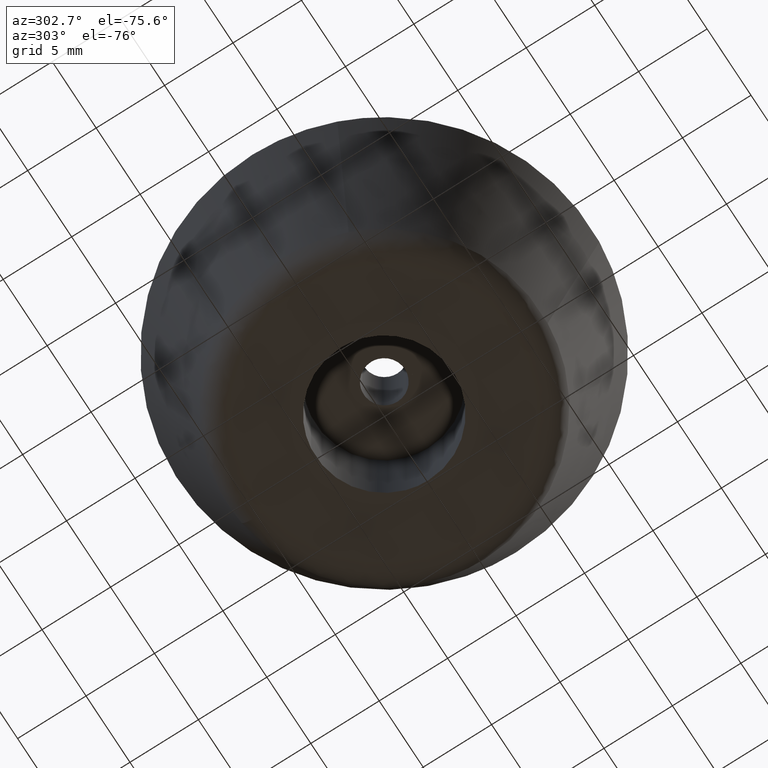
[diagram: clean part render]
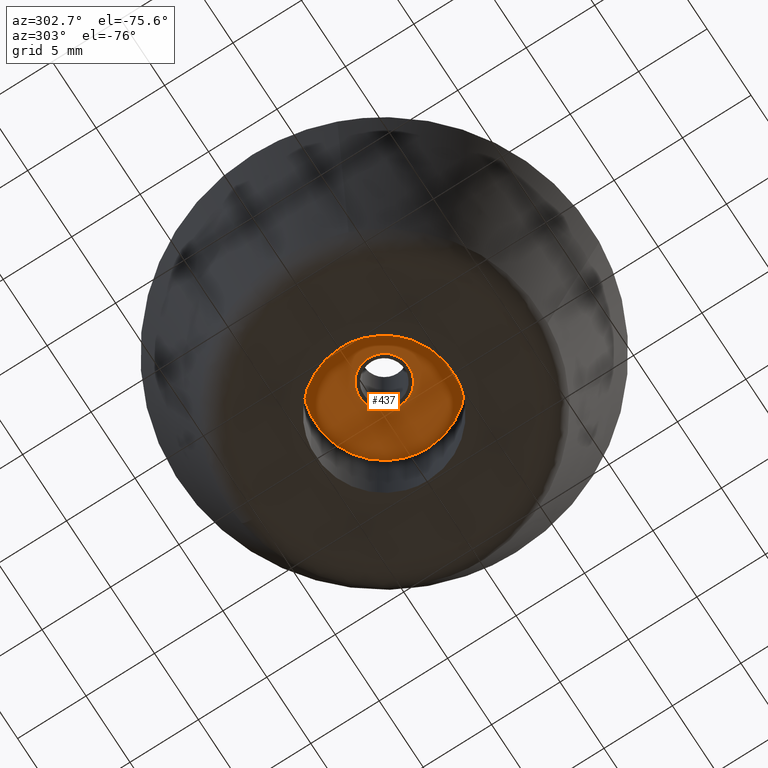
[diagram: same view with one face highlighted and labeled with its STEP entity id]
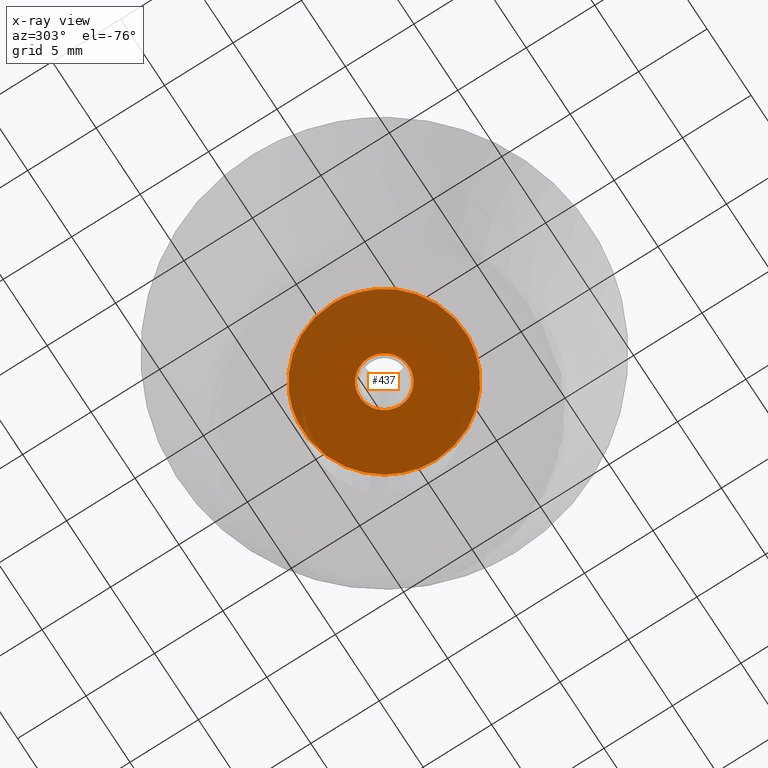
[diagram: x-ray of the same camera — body ghosted, the highlighted face saturated]
A machine part, auxiliary view. The second image highlights one B-rep face of the part: STEP entity #437.
The next image is the same camera in x-ray: the body ghosted, the highlighted face saturated — about 41% of this face is hidden behind the body in this view.
In plain terms, the highlighted face is a freeform B-spline surface patch.
Its self-contained STEP definition (entity closure, byte-faithful):
#66=CARTESIAN_POINT('',(-0.212461622440302,1.787417147447689,7.999999999999900));
#67=VERTEX_POINT('',#66);
#68=CARTESIAN_POINT('',(1.800000000000000,0.0,7.999999999999900));
#69=VERTEX_POINT('',#68);
#70=CARTESIAN_POINT('',(-0.212461622440302,1.787417147447688,7.999999999999900));
#71=CARTESIAN_POINT('',(-0.106603415432190,1.800000000000000,7.999999999999899));
#72=CARTESIAN_POINT('',(0.0,1.800000000000000,7.999999999999900));
#73=CARTESIAN_POINT('',(1.800000000000001,1.800000000000001,7.999999999999900));
#74=CARTESIAN_POINT('',(1.800000000000000,0.0,7.999999999999900));
#82=(BOUNDED_CURVE()B_SPLINE_CURVE(2,(#70,#71,#72,#73,#74),.UNSPECIFIED.,.F.,.U.)B_SPLINE_CURVE_WITH_KNOTS((3,2,3),(0.229562473504650,0.250000000000000,0.500000000000000),.UNSPECIFIED.)CURVE()GEOMETRIC_REPRESENTATION_ITEM()RATIONAL_B_SPLINE_CURVE((0.956026754166337,0.976055948320767,1.0,0.707106781186547,1.0))REPRESENTATION_ITEM(''));
#83=EDGE_CURVE('',#67,#69,#82,.T.);
#85=CARTESIAN_POINT('',(0.109887371177959,-1.796642637158430,7.999999999999899));
#86=VERTEX_POINT('',#85);
#87=CARTESIAN_POINT('',(1.800000000000000,0.0,7.999999999999900));
#88=CARTESIAN_POINT('',(1.800000000000000,-1.693270920401510,7.999999999999899));
#89=CARTESIAN_POINT('',(0.109887371177959,-1.796642637158429,7.999999999999900));
#97=(BOUNDED_CURVE()B_SPLINE_CURVE(2,(#87,#88,#89),.UNSPECIFIED.,.F.,.U.)B_SPLINE_CURVE_WITH_KNOTS((3,3),(0.500000000000000,0.739332962239045),.UNSPECIFIED.)CURVE()GEOMETRIC_REPRESENTATION_ITEM()RATIONAL_B_SPLINE_CURVE((1.0,0.719603993286591,0.976072041666937))REPRESENTATION_ITEM(''));
#98=EDGE_CURVE('',#69,#86,#97,.T.);
#165=CARTESIAN_POINT('',(-1.800000000000000,0.0,7.999999999999900));
#166=VERTEX_POINT('',#165);
#167=CARTESIAN_POINT('',(-1.800000000000000,0.0,7.999999999999900));
#168=CARTESIAN_POINT('',(-1.800000000000001,1.598714146607731,7.999999999999901));
#169=CARTESIAN_POINT('',(-0.212461622440302,1.787417147447688,7.999999999999900));
#177=(BOUNDED_CURVE()B_SPLINE_CURVE(2,(#167,#168,#169),.UNSPECIFIED.,.F.,.U.)B_SPLINE_CURVE_WITH_KNOTS((3,3),(0.0,0.229562473504650),.UNSPECIFIED.)CURVE()GEOMETRIC_REPRESENTATION_ITEM()RATIONAL_B_SPLINE_CURVE((1.0,0.731050832865780,0.956026754166337))REPRESENTATION_ITEM(''));
#178=EDGE_CURVE('',#166,#67,#177,.T.);
#212=CARTESIAN_POINT('',(0.109887371177959,-1.796642637158430,7.999999999999899));
#213=CARTESIAN_POINT('',(0.054994973952719,-1.800000000000000,7.999999999999901));
#214=CARTESIAN_POINT('',(0.0,-1.800000000000000,7.999999999999900));
#215=CARTESIAN_POINT('',(-1.800000000000001,-1.800000000000001,7.999999999999900));
#216=CARTESIAN_POINT('',(-1.800000000000000,0.0,7.999999999999900));
#224=(BOUNDED_CURVE()B_SPLINE_CURVE(2,(#212,#213,#214,#215,#216),.UNSPECIFIED.,.F.,.U.)B_SPLINE_CURVE_WITH_KNOTS((3,2,3),(0.739332962239046,0.750000000000000,1.0),.UNSPECIFIED.)CURVE()GEOMETRIC_REPRESENTATION_ITEM()RATIONAL_B_SPLINE_CURVE((0.976072041666938,0.987502787899958,1.0,0.707106781186547,1.0))REPRESENTATION_ITEM(''));
#225=EDGE_CURVE('',#86,#166,#224,.T.);
#252=CARTESIAN_POINT('',(-0.696391746445862,5.858757422472428,8.000000000000110));
#253=VERTEX_POINT('',#252);
#254=CARTESIAN_POINT('',(5.900000000000000,0.0,7.999999999999900));
#255=VERTEX_POINT('',#254);
#256=CARTESIAN_POINT('',(-0.696391746445862,5.858757422472428,8.000000000000110));
#257=CARTESIAN_POINT('',(-0.349417132815537,5.900000000000000,7.999999999999899));
#258=CARTESIAN_POINT('',(0.0,5.900000000000000,7.999999999999900));
#259=CARTESIAN_POINT('',(5.900000000000000,5.900000000000000,7.999999999999901));
#260=CARTESIAN_POINT('',(5.900000000000000,0.0,7.999999999999900));
#268=(BOUNDED_CURVE()B_SPLINE_CURVE(2,(#256,#257,#258,#259,#260),.UNSPECIFIED.,.F.,.U.)B_SPLINE_CURVE_WITH_KNOTS((3,2,3),(0.229562768844599,0.250000000000000,0.500000000000000),.UNSPECIFIED.)CURVE()GEOMETRIC_REPRESENTATION_ITEM()RATIONAL_B_SPLINE_CURVE((0.956027333045540,0.976056294333040,1.0,0.707106781186548,1.0))REPRESENTATION_ITEM(''));
#269=EDGE_CURVE('',#253,#255,#268,.T.);
#310=CARTESIAN_POINT('',(0.360185819184552,-5.888995345189027,7.999999999999903));
#311=VERTEX_POINT('',#310);
#317=CARTESIAN_POINT('',(5.900000000000000,0.0,7.999999999999900));
#318=CARTESIAN_POINT('',(5.900000000000000,-5.550166859963921,7.999999999999899));
#319=CARTESIAN_POINT('',(0.360185819184552,-5.888995345189027,7.999999999999903));
#327=(BOUNDED_CURVE()B_SPLINE_CURVE(2,(#317,#318,#319),.UNSPECIFIED.,.F.,.U.)B_SPLINE_CURVE_WITH_KNOTS((3,3),(0.500000000000000,0.739332995296389),.UNSPECIFIED.)CURVE()GEOMETRIC_REPRESENTATION_ITEM()RATIONAL_B_SPLINE_CURVE((1.0,0.719603954557504,0.976072112515127))REPRESENTATION_ITEM(''));
#328=EDGE_CURVE('',#255,#311,#327,.T.);
#355=CARTESIAN_POINT('',(-5.900000000000000,0.0,7.999999999999900));
#356=VERTEX_POINT('',#355);
#357=CARTESIAN_POINT('',(-5.900000000000000,0.0,7.999999999999900));
#358=CARTESIAN_POINT('',(-5.900000000000000,5.240238924751410,7.999999999999901));
#359=CARTESIAN_POINT('',(-0.696391746445862,5.858757422472428,8.000000000000110));
#367=(BOUNDED_CURVE()B_SPLINE_CURVE(2,(#357,#358,#359),.UNSPECIFIED.,.F.,.U.)B_SPLINE_CURVE_WITH_KNOTS((3,3),(0.0,0.229562768844599),.UNSPECIFIED.)CURVE()GEOMETRIC_REPRESENTATION_ITEM()RATIONAL_B_SPLINE_CURVE((1.0,0.731050486853508,0.956027333045540))REPRESENTATION_ITEM(''));
#368=EDGE_CURVE('',#356,#253,#367,.T.);
#370=CARTESIAN_POINT('',(0.360185819184552,-5.888995345189027,7.999999999999903));
#371=CARTESIAN_POINT('',(0.180260737808975,-5.900000000000000,7.999999999999901));
#372=CARTESIAN_POINT('',(0.0,-5.900000000000000,7.999999999999900));
#373=CARTESIAN_POINT('',(-5.900000000000000,-5.900000000000000,7.999999999999901));
#374=CARTESIAN_POINT('',(-5.900000000000000,0.0,7.999999999999900));
#382=(BOUNDED_CURVE()B_SPLINE_CURVE(2,(#370,#371,#372,#373,#374),.UNSPECIFIED.,.F.,.U.)B_SPLINE_CURVE_WITH_KNOTS((3,2,3),(0.739332995296388,0.750000000000000,1.0),.UNSPECIFIED.)CURVE()GEOMETRIC_REPRESENTATION_ITEM()RATIONAL_B_SPLINE_CURVE((0.976072112515125,0.987502826629043,1.0,0.707106781186548,1.0))REPRESENTATION_ITEM(''));
#383=EDGE_CURVE('',#311,#356,#382,.T.);
#420=CARTESIAN_POINT('',(-6.489410087899267,-6.489266597913432,7.999999999999900));
#421=CARTESIAN_POINT('',(6.489410298899711,-6.489266597913432,7.999999999999900));
#422=CARTESIAN_POINT('',(-6.489410087899267,6.489302678989104,7.999999999999900));
#423=CARTESIAN_POINT('',(6.489410298899711,6.489302678989104,7.999999999999900));
#424=B_SPLINE_SURFACE_WITH_KNOTS('',1,1,((#420,#422),(#421,#423)),.UNSPECIFIED.,.F.,.F.,.U.,(2,2),(2,2),(0.0,12.978820386798979),(0.0,12.978569276902540),.UNSPECIFIED.);
#425=ORIENTED_EDGE('',*,*,#368,.T.);
#426=ORIENTED_EDGE('',*,*,#269,.T.);
#427=ORIENTED_EDGE('',*,*,#328,.T.);
#428=ORIENTED_EDGE('',*,*,#383,.T.);
#429=EDGE_LOOP('',(#425,#426,#427,#428));
#430=FACE_OUTER_BOUND('',#429,.T.);
#431=ORIENTED_EDGE('',*,*,#98,.F.);
#432=ORIENTED_EDGE('',*,*,#83,.F.);
#433=ORIENTED_EDGE('',*,*,#178,.F.);
#434=ORIENTED_EDGE('',*,*,#225,.F.);
#435=EDGE_LOOP('',(#431,#432,#433,#434));
#436=FACE_BOUND('',#435,.T.);
#437=ADVANCED_FACE('',(#430,#436),#424,.F.);